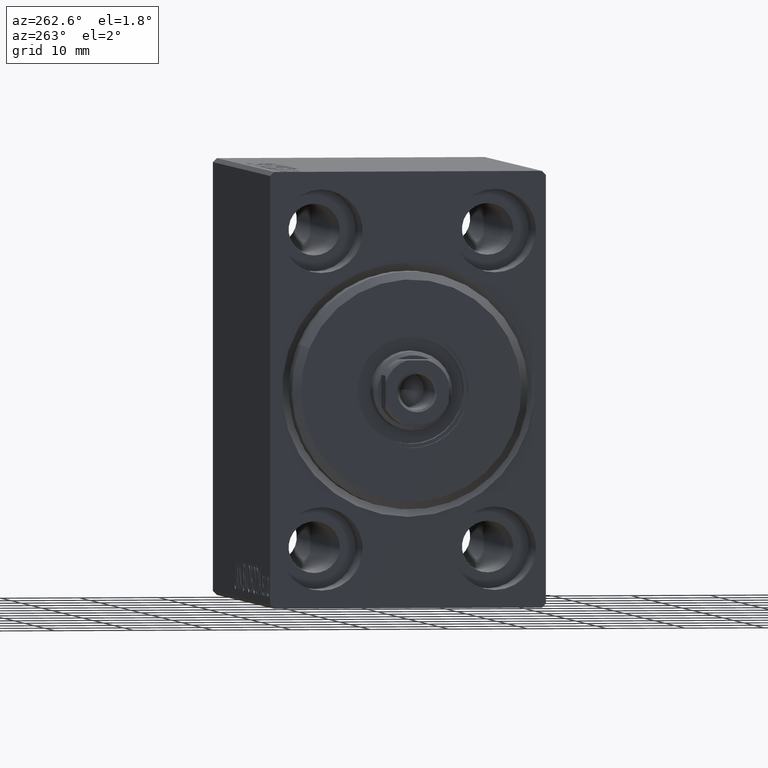
[diagram: clean part render]
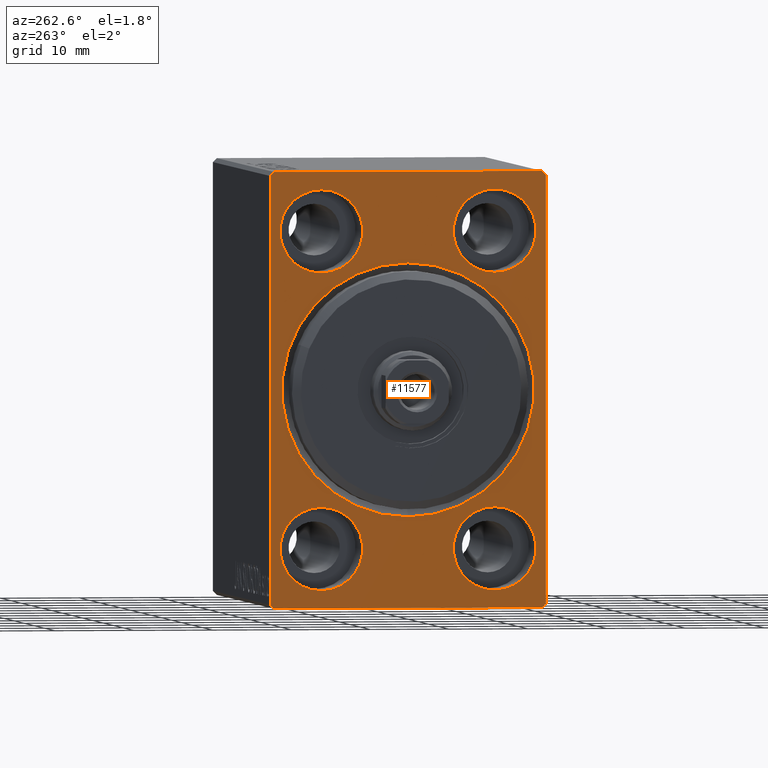
[diagram: same view with one face highlighted and labeled with its STEP entity id]
A machine part, auxiliary view. The second image highlights one B-rep face of the part: STEP entity #11577.
In plain terms, the highlighted planar face has unit normal (1, 0, 0).
Its self-contained STEP definition (entity closure, byte-faithful):
#40 = CIRCLE ( 'NONE', #24130, 16.00000000000001421 ) ;
#606 = CIRCLE ( 'NONE', #36748, 5.250000000000000888 ) ;
#971 = CIRCLE ( 'NONE', #42093, 5.250000000000000888 ) ;
#1083 = DIRECTION ( 'NONE',  ( -0.000000000000000000, 0.7071067811865474617, 0.7071067811865474617 ) ) ;
#1819 = CARTESIAN_POINT ( 'NONE',  ( 0.000000000000000000, -11.00000000000000355, -20.00000000000000000 ) ) ;
#1827 = ORIENTED_EDGE ( 'NONE', *, *, #5649, .F. ) ;
#1952 = CARTESIAN_POINT ( 'NONE',  ( 0.000000000000000000, 17.50000000000000711, -27.00000000000000355 ) ) ;
#2044 = CIRCLE ( 'NONE', #16995, 5.250000000000000888 ) ;
#2266 = ORIENTED_EDGE ( 'NONE', *, *, #27662, .T. ) ;
#2323 = VERTEX_POINT ( 'NONE', #15943 ) ;
#2438 = AXIS2_PLACEMENT_3D ( 'NONE', #26526, #9666, #23196 ) ;
#2446 = ORIENTED_EDGE ( 'NONE', *, *, #5705, .F. ) ;
#2675 = CARTESIAN_POINT ( 'NONE',  ( 0.000000000000000000, -11.00000000000000355, -25.25000000000000000 ) ) ;
#2805 = FACE_BOUND ( 'NONE', #6062, .T. ) ;
#2936 = ORIENTED_EDGE ( 'NONE', *, *, #27608, .F. ) ;
#2993 = EDGE_CURVE ( 'NONE', #14485, #35873, #40, .T. ) ;
#3065 = CARTESIAN_POINT ( 'NONE',  ( 0.000000000000000000, -11.00000000000000355, 25.25000000000000000 ) ) ;
#3565 = DIRECTION ( 'NONE',  ( 1.000000000000000000, 0.000000000000000000, 0.000000000000000000 ) ) ;
#4193 = CARTESIAN_POINT ( 'NONE',  ( 0.000000000000000000, -17.50000000000000000, 26.99999999999998934 ) ) ;
#4536 = ORIENTED_EDGE ( 'NONE', *, *, #27794, .F. ) ;
#4606 = LINE ( 'NONE', #17521, #29531 ) ;
#4906 = VERTEX_POINT ( 'NONE', #27636 ) ;
#5184 = CARTESIAN_POINT ( 'NONE',  ( 0.000000000000000000, 17.00000000000000711, -27.50000000000000355 ) ) ;
#5315 = DIRECTION ( 'NONE',  ( 1.000000000000000000, 0.000000000000000000, 0.000000000000000000 ) ) ;
#5468 = DIRECTION ( 'NONE',  ( 0.000000000000000000, -1.000000000000000000, -1.982541115402065110E-16 ) ) ;
#5649 = EDGE_CURVE ( 'NONE', #9847, #8460, #16341, .T. ) ;
#5705 = EDGE_CURVE ( 'NONE', #42749, #25560, #36758, .T. ) ;
#5889 = CARTESIAN_POINT ( 'NONE',  ( 0.000000000000000000, 17.50000000000000711, -27.50000000000000355 ) ) ;
#6062 = EDGE_LOOP ( 'NONE', ( #12857, #2936 ) ) ;
#6215 = CARTESIAN_POINT ( 'NONE',  ( 0.000000000000000000, 0.000000000000000000, 16.00000000000001421 ) ) ;
#6341 = CARTESIAN_POINT ( 'NONE',  ( 0.000000000000000000, -17.50000000000000000, -27.50000000000000355 ) ) ;
#6463 = CARTESIAN_POINT ( 'NONE',  ( 0.000000000000000000, 0.000000000000000000, 0.000000000000000000 ) ) ;
#6616 = VERTEX_POINT ( 'NONE', #18744 ) ;
#7656 = DIRECTION ( 'NONE',  ( -1.000000000000000000, 0.000000000000000000, 0.000000000000000000 ) ) ;
#7827 = VERTEX_POINT ( 'NONE', #30874 ) ;
#8307 = ORIENTED_EDGE ( 'NONE', *, *, #13904, .F. ) ;
#8439 = FACE_BOUND ( 'NONE', #43178, .T. ) ;
#8460 = VERTEX_POINT ( 'NONE', #21167 ) ;
#8722 = AXIS2_PLACEMENT_3D ( 'NONE', #6463, #3565, #40419 ) ;
#9316 = ORIENTED_EDGE ( 'NONE', *, *, #23500, .T. ) ;
#9600 = EDGE_CURVE ( 'NONE', #2323, #8460, #28845, .T. ) ;
#9666 = DIRECTION ( 'NONE',  ( -1.000000000000000000, 0.000000000000000000, 0.000000000000000000 ) ) ;
#9763 = DIRECTION ( 'NONE',  ( 0.000000000000000000, 0.000000000000000000, 1.000000000000000000 ) ) ;
#9847 = VERTEX_POINT ( 'NONE', #1952 ) ;
#9958 = DIRECTION ( 'NONE',  ( 0.000000000000000000, 0.000000000000000000, 1.000000000000000000 ) ) ;
#9990 = CARTESIAN_POINT ( 'NONE',  ( 0.000000000000000000, -11.00000000000000355, 20.00000000000000000 ) ) ;
#10340 = EDGE_LOOP ( 'NONE', ( #21276, #9316, #4536, #14861, #1827, #26032, #2446, #2266 ) ) ;
#10557 = ORIENTED_EDGE ( 'NONE', *, *, #2993, .T. ) ;
#10857 = CARTESIAN_POINT ( 'NONE',  ( 0.000000000000000000, -16.99999999999999289, -27.50000000000000355 ) ) ;
#11111 = CARTESIAN_POINT ( 'NONE',  ( 0.000000000000000000, 0.000000000000000000, 0.000000000000000000 ) ) ;
#11386 = ORIENTED_EDGE ( 'NONE', *, *, #12542, .T. ) ;
#11577 = ADVANCED_FACE ( 'NONE', ( #8439, #18865, #21558, #2805, #18653, #16370 ), #12208, .F. ) ;
#12208 = PLANE ( 'NONE',  #14388 ) ;
#12495 = ORIENTED_EDGE ( 'NONE', *, *, #29062, .F. ) ;
#12542 = EDGE_CURVE ( 'NONE', #35873, #14485, #13721, .T. ) ;
#12757 = CIRCLE ( 'NONE', #40492, 5.250000000000000888 ) ;
#12857 = ORIENTED_EDGE ( 'NONE', *, *, #25106, .F. ) ;
#13217 = ORIENTED_EDGE ( 'NONE', *, *, #38005, .F. ) ;
#13585 = VERTEX_POINT ( 'NONE', #2675 ) ;
#13721 = CIRCLE ( 'NONE', #8722, 16.00000000000001421 ) ;
#13746 = CARTESIAN_POINT ( 'NONE',  ( 0.000000000000000000, 11.00000000000000355, 20.00000000000000000 ) ) ;
#13904 = EDGE_CURVE ( 'NONE', #16005, #26819, #971, .T. ) ;
#14380 = CARTESIAN_POINT ( 'NONE',  ( 0.000000000000000000, -16.99999999999999289, 27.49999999999999645 ) ) ;
#14388 = AXIS2_PLACEMENT_3D ( 'NONE', #19693, #5315, #36563 ) ;
#14485 = VERTEX_POINT ( 'NONE', #42072 ) ;
#14861 = ORIENTED_EDGE ( 'NONE', *, *, #9600, .T. ) ;
#15327 = AXIS2_PLACEMENT_3D ( 'NONE', #18218, #28415, #18646 ) ;
#15536 = CARTESIAN_POINT ( 'NONE',  ( 0.000000000000000000, 16.99999999999999289, 27.50000000000000355 ) ) ;
#15943 = CARTESIAN_POINT ( 'NONE',  ( 0.000000000000000000, 16.99999999999999289, 27.50000000000000355 ) ) ;
#16005 = VERTEX_POINT ( 'NONE', #19382 ) ;
#16341 = LINE ( 'NONE', #5889, #36958 ) ;
#16370 = FACE_OUTER_BOUND ( 'NONE', #10340, .T. ) ;
#16995 = AXIS2_PLACEMENT_3D ( 'NONE', #43605, #29170, #26522 ) ;
#17521 = CARTESIAN_POINT ( 'NONE',  ( 0.000000000000000000, 17.50000000000000711, -27.00000000000000355 ) ) ;
#17881 = CARTESIAN_POINT ( 'NONE',  ( 0.000000000000000000, 11.00000000000000355, 14.75000000000000000 ) ) ;
#18165 = DIRECTION ( 'NONE',  ( -0.000000000000000000, -0.7071067811865474617, 0.7071067811865474617 ) ) ;
#18218 = CARTESIAN_POINT ( 'NONE',  ( 0.000000000000000000, -11.00000000000000355, -20.00000000000000000 ) ) ;
#18646 = DIRECTION ( 'NONE',  ( 0.000000000000000000, 0.000000000000000000, 1.000000000000000000 ) ) ;
#18653 = FACE_BOUND ( 'NONE', #26439, .T. ) ;
#18744 = CARTESIAN_POINT ( 'NONE',  ( 0.000000000000000000, -17.50000000000000000, 26.99999999999998934 ) ) ;
#18865 = FACE_BOUND ( 'NONE', #42796, .T. ) ;
#18871 = CIRCLE ( 'NONE', #15327, 5.250000000000000888 ) ;
#18948 = EDGE_LOOP ( 'NONE', ( #27541, #8307 ) ) ;
#19148 = VECTOR ( 'NONE', #25055, 1000.000000000000000 ) ;
#19382 = CARTESIAN_POINT ( 'NONE',  ( 0.000000000000000000, -11.00000000000000355, 14.75000000000000000 ) ) ;
#19693 = CARTESIAN_POINT ( 'NONE',  ( 0.000000000000000000, 0.000000000000000000, 0.000000000000000000 ) ) ;
#20060 = EDGE_CURVE ( 'NONE', #29093, #4906, #24448, .T. ) ;
#20841 = LINE ( 'NONE', #10857, #36567 ) ;
#20925 = CARTESIAN_POINT ( 'NONE',  ( 0.000000000000000000, 11.00000000000000355, 25.25000000000000000 ) ) ;
#21084 = CARTESIAN_POINT ( 'NONE',  ( 0.000000000000000000, -17.50000000000000000, -26.99999999999999645 ) ) ;
#21167 = CARTESIAN_POINT ( 'NONE',  ( 0.000000000000000000, 17.50000000000000000, 26.99999999999999645 ) ) ;
#21276 = ORIENTED_EDGE ( 'NONE', *, *, #41456, .F. ) ;
#21310 = VERTEX_POINT ( 'NONE', #20925 ) ;
#21558 = FACE_BOUND ( 'NONE', #18948, .T. ) ;
#21831 = DIRECTION ( 'NONE',  ( -1.000000000000000000, 0.000000000000000000, 0.000000000000000000 ) ) ;
#22385 = AXIS2_PLACEMENT_3D ( 'NONE', #13746, #43701, #37059 ) ;
#22993 = DIRECTION ( 'NONE',  ( 0.000000000000000000, -1.261617073437677752E-16, 1.000000000000000000 ) ) ;
#23090 = CIRCLE ( 'NONE', #22385, 5.250000000000000888 ) ;
#23196 = DIRECTION ( 'NONE',  ( 0.000000000000000000, 0.000000000000000000, 1.000000000000000000 ) ) ;
#23493 = CARTESIAN_POINT ( 'NONE',  ( 0.000000000000000000, -11.00000000000000355, 20.00000000000000000 ) ) ;
#23497 = VERTEX_POINT ( 'NONE', #21084 ) ;
#23500 = EDGE_CURVE ( 'NONE', #6616, #24450, #34617, .T. ) ;
#23547 = VECTOR ( 'NONE', #29064, 1000.000000000000114 ) ;
#23667 = DIRECTION ( 'NONE',  ( 0.000000000000000000, 1.000000000000000000, 0.000000000000000000 ) ) ;
#24130 = AXIS2_PLACEMENT_3D ( 'NONE', #11111, #31078, #27964 ) ;
#24448 = CIRCLE ( 'NONE', #2438, 5.250000000000000888 ) ;
#24450 = VERTEX_POINT ( 'NONE', #14380 ) ;
#25055 = DIRECTION ( 'NONE',  ( 0.000000000000000000, 0.000000000000000000, -1.000000000000000000 ) ) ;
#25106 = EDGE_CURVE ( 'NONE', #21310, #25830, #42991, .T. ) ;
#25230 = VECTOR ( 'NONE', #1083, 1000.000000000000114 ) ;
#25560 = VERTEX_POINT ( 'NONE', #5184 ) ;
#25830 = VERTEX_POINT ( 'NONE', #17881 ) ;
#26032 = ORIENTED_EDGE ( 'NONE', *, *, #32207, .T. ) ;
#26371 = ORIENTED_EDGE ( 'NONE', *, *, #20060, .F. ) ;
#26439 = EDGE_LOOP ( 'NONE', ( #12495, #32377 ) ) ;
#26522 = DIRECTION ( 'NONE',  ( 0.000000000000000000, 0.000000000000000000, 1.000000000000000000 ) ) ;
#26526 = CARTESIAN_POINT ( 'NONE',  ( 0.000000000000000000, 11.00000000000000355, -20.00000000000000000 ) ) ;
#26819 = VERTEX_POINT ( 'NONE', #3065 ) ;
#27541 = ORIENTED_EDGE ( 'NONE', *, *, #36114, .F. ) ;
#27608 = EDGE_CURVE ( 'NONE', #25830, #21310, #23090, .T. ) ;
#27636 = CARTESIAN_POINT ( 'NONE',  ( 0.000000000000000000, 11.00000000000000355, -25.25000000000000000 ) ) ;
#27662 = EDGE_CURVE ( 'NONE', #42749, #23497, #20841, .T. ) ;
#27794 = EDGE_CURVE ( 'NONE', #2323, #24450, #41688, .T. ) ;
#27964 = DIRECTION ( 'NONE',  ( 0.000000000000000000, 0.000000000000000000, -1.000000000000000000 ) ) ;
#28415 = DIRECTION ( 'NONE',  ( -1.000000000000000000, 0.000000000000000000, 0.000000000000000000 ) ) ;
#28845 = LINE ( 'NONE', #15536, #23547 ) ;
#29062 = EDGE_CURVE ( 'NONE', #7827, #13585, #18871, .T. ) ;
#29064 = DIRECTION ( 'NONE',  ( -0.000000000000000000, 0.7071067811865474617, -0.7071067811865474617 ) ) ;
#29093 = VERTEX_POINT ( 'NONE', #33057 ) ;
#29170 = DIRECTION ( 'NONE',  ( -1.000000000000000000, 0.000000000000000000, 0.000000000000000000 ) ) ;
#29525 = CARTESIAN_POINT ( 'NONE',  ( 0.000000000000000000, 11.00000000000000355, 20.00000000000000000 ) ) ;
#29531 = VECTOR ( 'NONE', #31479, 1000.000000000000114 ) ;
#30874 = CARTESIAN_POINT ( 'NONE',  ( 0.000000000000000000, -11.00000000000000355, -14.75000000000000000 ) ) ;
#31078 = DIRECTION ( 'NONE',  ( 1.000000000000000000, 0.000000000000000000, 0.000000000000000000 ) ) ;
#31277 = CARTESIAN_POINT ( 'NONE',  ( 0.000000000000000000, -17.50000000000000000, 27.49999999999999645 ) ) ;
#31479 = DIRECTION ( 'NONE',  ( 0.000000000000000000, -0.7071067811865474617, -0.7071067811865474617 ) ) ;
#32204 = DIRECTION ( 'NONE',  ( 0.000000000000000000, 0.000000000000000000, 1.000000000000000000 ) ) ;
#32207 = EDGE_CURVE ( 'NONE', #9847, #25560, #4606, .T. ) ;
#32377 = ORIENTED_EDGE ( 'NONE', *, *, #42977, .F. ) ;
#32416 = DIRECTION ( 'NONE',  ( -1.000000000000000000, 0.000000000000000000, 0.000000000000000000 ) ) ;
#33057 = CARTESIAN_POINT ( 'NONE',  ( 0.000000000000000000, 11.00000000000000355, -14.75000000000000000 ) ) ;
#33400 = VECTOR ( 'NONE', #23667, 1000.000000000000000 ) ;
#33797 = AXIS2_PLACEMENT_3D ( 'NONE', #29525, #32416, #32204 ) ;
#33952 = DIRECTION ( 'NONE',  ( -1.000000000000000000, 0.000000000000000000, 0.000000000000000000 ) ) ;
#34613 = LINE ( 'NONE', #31277, #19148 ) ;
#34617 = LINE ( 'NONE', #4193, #25230 ) ;
#35855 = VECTOR ( 'NONE', #5468, 1000.000000000000000 ) ;
#35873 = VERTEX_POINT ( 'NONE', #6215 ) ;
#36114 = EDGE_CURVE ( 'NONE', #26819, #16005, #606, .T. ) ;
#36563 = DIRECTION ( 'NONE',  ( 0.000000000000000000, 0.000000000000000000, -1.000000000000000000 ) ) ;
#36567 = VECTOR ( 'NONE', #18165, 1000.000000000000114 ) ;
#36748 = AXIS2_PLACEMENT_3D ( 'NONE', #23493, #7656, #9958 ) ;
#36758 = LINE ( 'NONE', #6341, #33400 ) ;
#36958 = VECTOR ( 'NONE', #22993, 1000.000000000000000 ) ;
#37059 = DIRECTION ( 'NONE',  ( 0.000000000000000000, 0.000000000000000000, 1.000000000000000000 ) ) ;
#38005 = EDGE_CURVE ( 'NONE', #4906, #29093, #2044, .T. ) ;
#38361 = CARTESIAN_POINT ( 'NONE',  ( 0.000000000000000000, 17.50000000000000000, 27.50000000000000355 ) ) ;
#38899 = DIRECTION ( 'NONE',  ( 0.000000000000000000, 0.000000000000000000, 1.000000000000000000 ) ) ;
#40419 = DIRECTION ( 'NONE',  ( 0.000000000000000000, 0.000000000000000000, -1.000000000000000000 ) ) ;
#40492 = AXIS2_PLACEMENT_3D ( 'NONE', #1819, #21831, #38899 ) ;
#41456 = EDGE_CURVE ( 'NONE', #6616, #23497, #34613, .T. ) ;
#41688 = LINE ( 'NONE', #38361, #35855 ) ;
#42072 = CARTESIAN_POINT ( 'NONE',  ( 0.000000000000000000, 1.959434878635766709E-15, -16.00000000000001421 ) ) ;
#42082 = CARTESIAN_POINT ( 'NONE',  ( 0.000000000000000000, -16.99999999999999289, -27.50000000000000355 ) ) ;
#42093 = AXIS2_PLACEMENT_3D ( 'NONE', #9990, #33952, #9763 ) ;
#42749 = VERTEX_POINT ( 'NONE', #42082 ) ;
#42796 = EDGE_LOOP ( 'NONE', ( #26371, #13217 ) ) ;
#42977 = EDGE_CURVE ( 'NONE', #13585, #7827, #12757, .T. ) ;
#42991 = CIRCLE ( 'NONE', #33797, 5.250000000000000888 ) ;
#43178 = EDGE_LOOP ( 'NONE', ( #11386, #10557 ) ) ;
#43605 = CARTESIAN_POINT ( 'NONE',  ( 0.000000000000000000, 11.00000000000000355, -20.00000000000000000 ) ) ;
#43701 = DIRECTION ( 'NONE',  ( -1.000000000000000000, 0.000000000000000000, 0.000000000000000000 ) ) ;